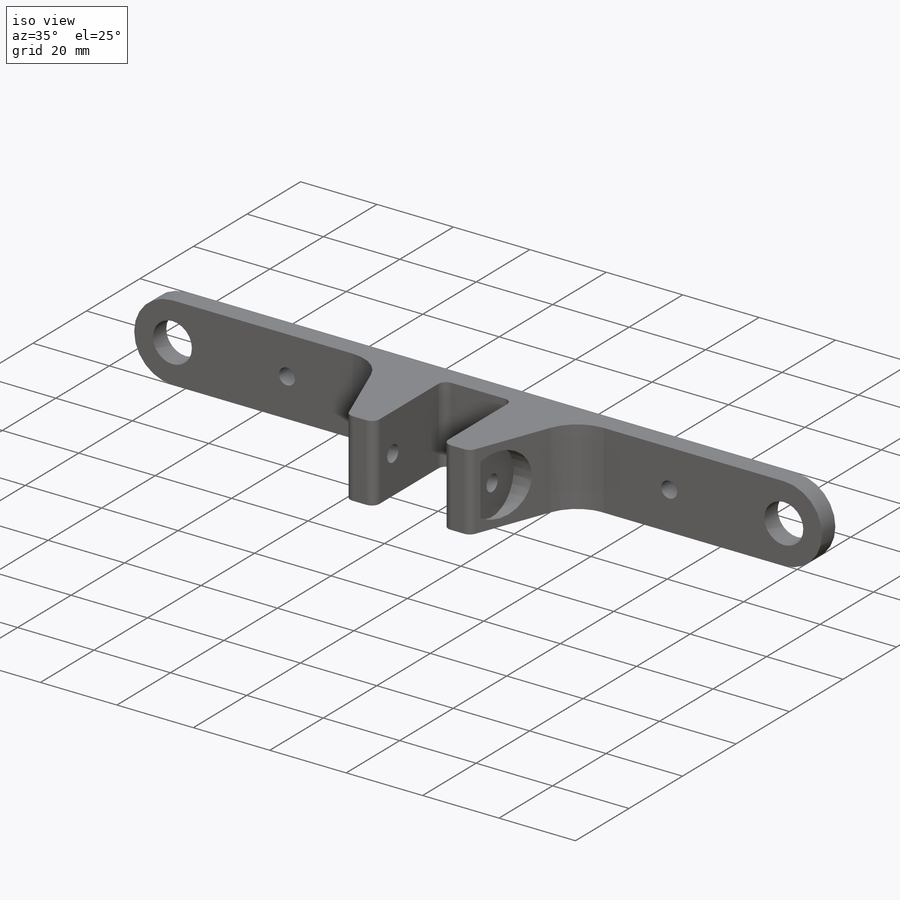
[diagram: iso view]
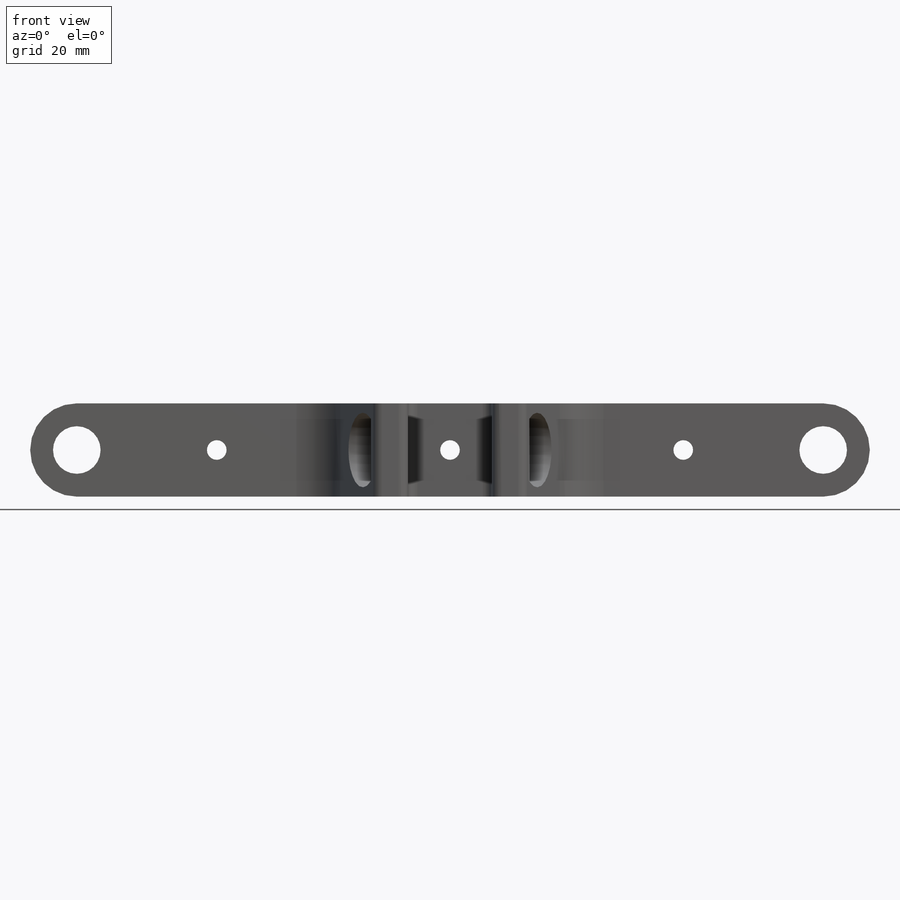
[diagram: front view]
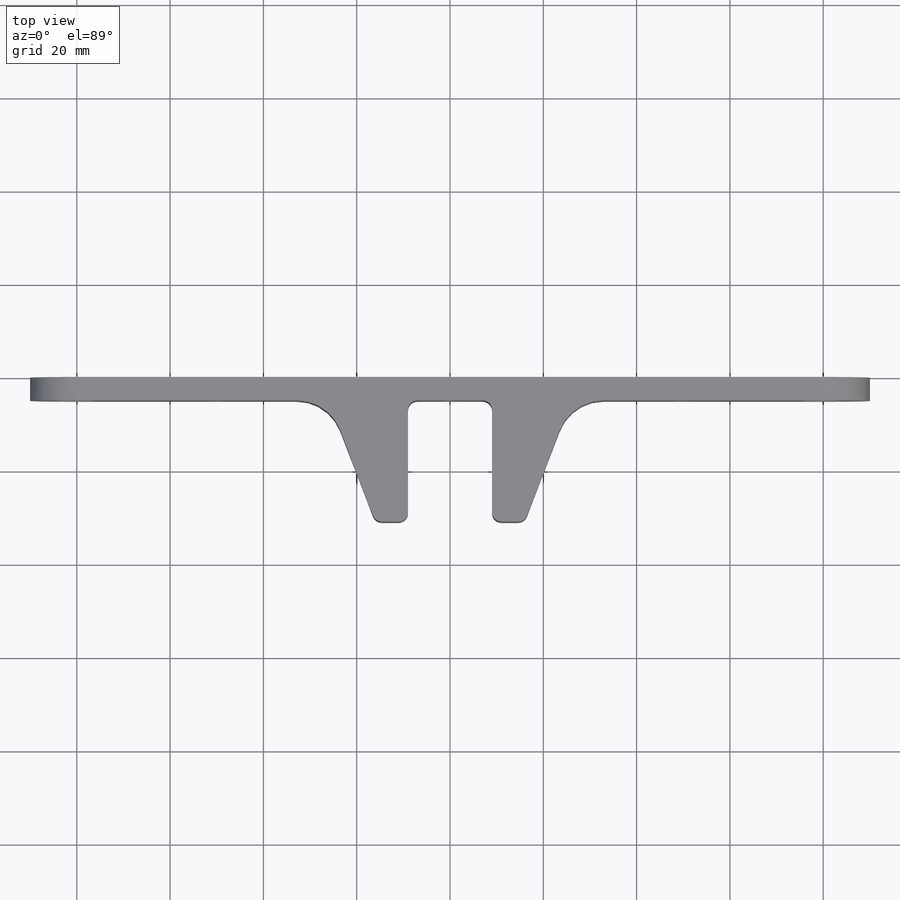
[diagram: top view]
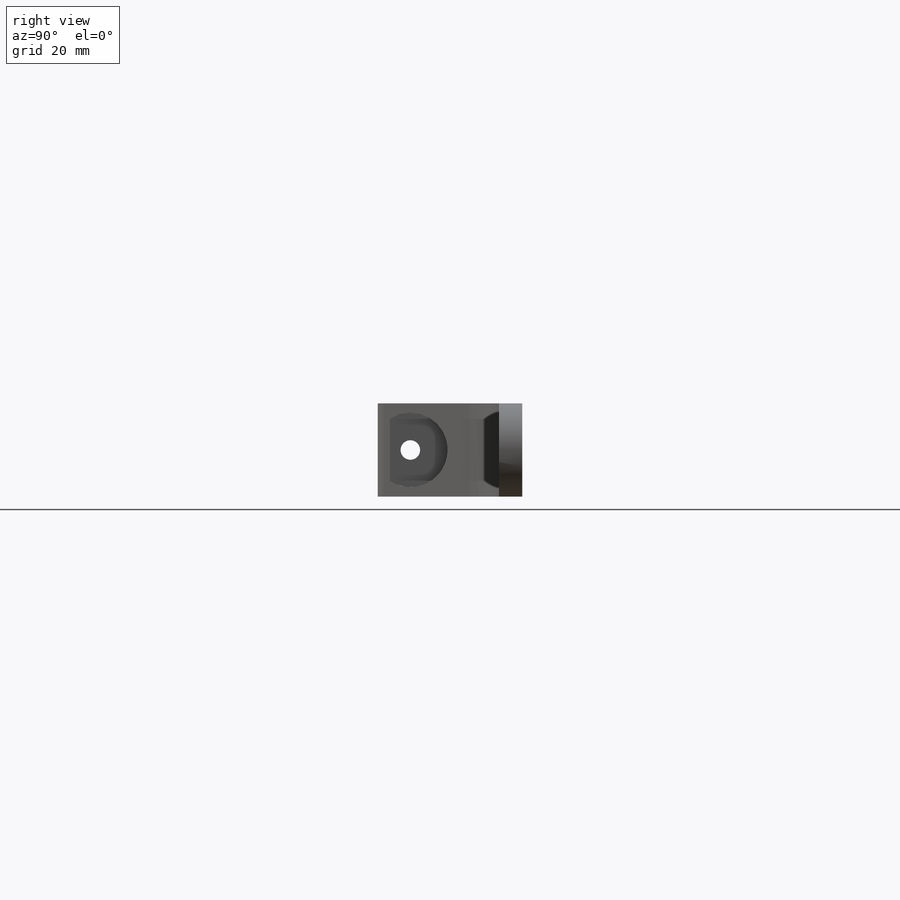
[diagram: right view]
SOLIDWORKS PART (.sldprt)
format: sldprt  version: not decoded by parser v0  size: 282,624 bytes
history: native  units: mm
features: sketch x8, cut_extrude x6, plane x3, fillet x3, extrude x2, material x1, chamfer x1 (+8 scaffold rows collapsed)
feature tree (32):
  scaffold x8  (default folders/planes/origin — collapsed)
  material  "Material <not specified>"
  plane  "Plan de face"
  plane  "Plan de dessus"
  plane  "Plan de droite"
  sketch  "Esquisse1"  dims[D1=160.0mm D2=20.0mm D3=80.0mm]
  extrude  "Boss.-Extru.1"  Depth=5mm
  sketch  "Esquisse2"  dims[c1.D1=10.2mm c1.D2=10.2mm c1.D3=4.2mm c1.D4=4.2mm c2.D3=140.0mm c2.D5=100.0mm c2.D6=50.0mm c2.D7=10.0mm c2.D8=10.0mm]
  cut_extrude  "Enlèv. mat.-Extru.1"  [1 undecoded]
  sketch  "Esquisse3"  dims[D1=16.0mm D2=16.0mm]
  extrude  "Boss.-Extru.2"  Depth=26mm
  chamfer  "Chanfrein1"  Distance=10mm
  fillet  "Congé1"  Radius=10mm
  sketch  "Esquisse4"  dims[D1=18.0mm D2=7.0mm]
  cut_extrude  "Enlèv. mat.-Extru.2"  Depth=26mm
  fillet  "Congé2"  Radius=2mm
  sketch  "Esquisse5"  dims[D1=4.2mm D2=10.0mm D3=7.0mm]
  cut_extrude  "Enlèv. mat.-Extru.3"  [1 undecoded]
  sketch  "Esquisse6"  dims[D1=16.0mm D2=~19.589791mm]
  cut_extrude  "Enlèv. mat.-Extru.4"  Depth=26mm
  sketch  "Esquisse7"  dims[D1=16.0mm]
  cut_extrude  "Enlèv. mat.-Extru.5"  Depth=8mm
  fillet  "Congé3"  Radius=2mm
  sketch  "Sketch1"  dims[D1=4.2mm]
  cut_extrude  "Cut-Extrude1"  [1 undecoded]
decode coverage: 17 of 20 modeling features carry decoded parameters
note: ~ marks probable driven/reference dimensions
note: 3 parameter values undecoded
summary: no parameter record found for 3 features
note: suppression state not decoded; provenance and decode notes live in map.json
